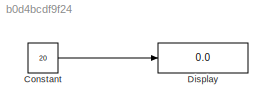
MODEL slx_b0d4bcdf9f24
KIND model
BLOCK [Constant] Constant
  Value = 20
BLOCK [Display] Display
  Decimation = 1
  Ports = [1]
LINE Constant:1 -> Display:1
